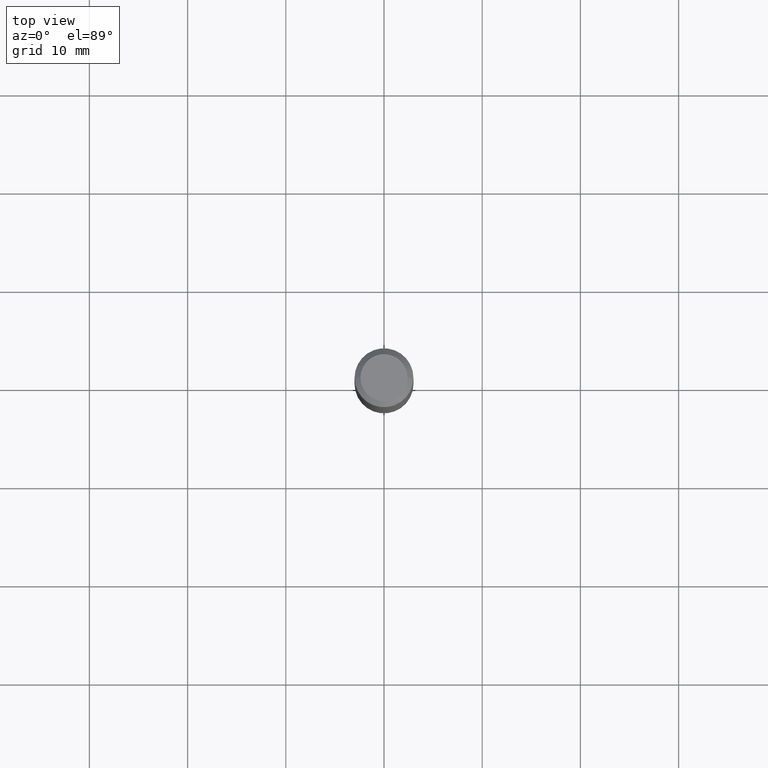
[diagram: clean part render]
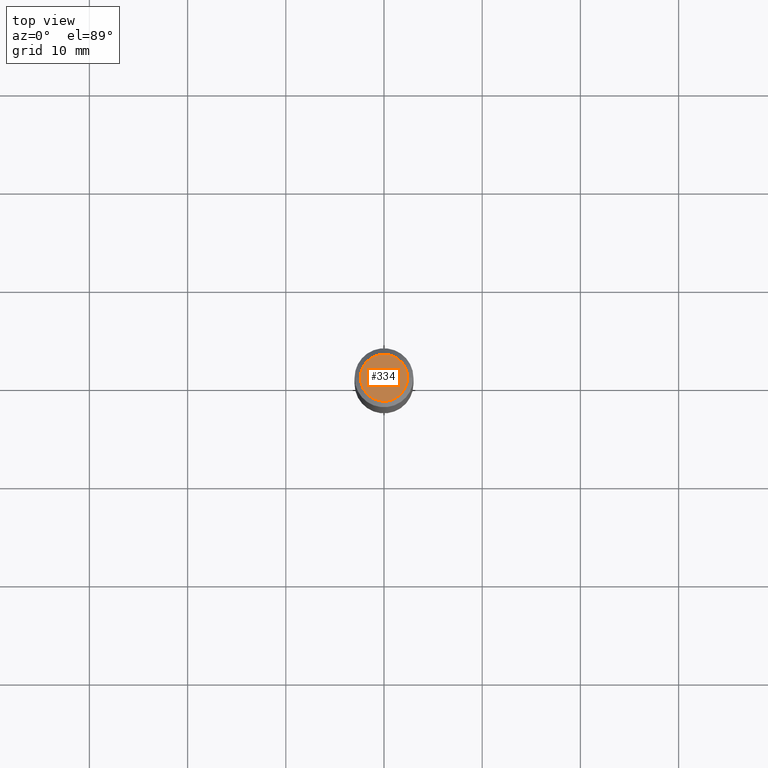
[diagram: same view with one face highlighted and labeled with its STEP entity id]
A machine part, top view. The second image highlights one B-rep face of the part: STEP entity #334.
In plain terms, the highlighted planar face has unit normal (0, -0, -1).
Its self-contained STEP definition (entity closure, byte-faithful):
#12 = PLANE ( 'NONE',  #167 ) ;
#50 = FACE_OUTER_BOUND ( 'NONE', #169, .T. ) ;
#55 = DIRECTION ( 'NONE',  ( 2.438088387897960049E-29, -3.491481338843145188E-15, -1.000000000000000000 ) ) ;
#75 = EDGE_CURVE ( 'NONE', #247, #235, #191, .T. ) ;
#80 = CARTESIAN_POINT ( 'NONE',  ( -0.09447999999999998066, 7.009847083995354710E-16, -1.928573779297727792E-17 ) ) ;
#107 = DIRECTION ( 'NONE',  ( -2.445468806185136597E-29, 3.491481338843145583E-15, 1.000000000000000000 ) ) ;
#151 = DIRECTION ( 'NONE',  ( -2.445468806185136597E-29, 3.491481338843145583E-15, 1.000000000000000000 ) ) ;
#167 = AXIS2_PLACEMENT_3D ( 'NONE', #420, #55, #210 ) ;
#169 = EDGE_LOOP ( 'NONE', ( #240, #217 ) ) ;
#185 = DIRECTION ( 'NONE',  ( 1.000000000000000000, -6.982962677686267499E-15, 4.875432709231658792E-29 ) ) ;
#190 = DIRECTION ( 'NONE',  ( 1.000000000000000000, -6.982962677686267499E-15, 4.875432709231658792E-29 ) ) ;
#191 = CIRCLE ( 'NONE', #449, 0.09447999999999998066 ) ;
#210 = DIRECTION ( 'NONE',  ( -1.000000000000000000, 6.982962677686265922E-15, -4.876176775795935793E-29 ) ) ;
#217 = ORIENTED_EDGE ( 'NONE', *, *, #440, .T. ) ;
#235 = VERTEX_POINT ( 'NONE', #421 ) ;
#240 = ORIENTED_EDGE ( 'NONE', *, *, #75, .T. ) ;
#247 = VERTEX_POINT ( 'NONE', #80 ) ;
#278 = CARTESIAN_POINT ( 'NONE',  ( 4.716267017698007905E-46, -6.733579360998555036E-32, -1.928573779297252010E-17 ) ) ;
#330 = CIRCLE ( 'NONE', #338, 0.09447999999999998066 ) ;
#334 = ADVANCED_FACE ( 'NONE', ( #50 ), #12, .F. ) ;
#338 = AXIS2_PLACEMENT_3D ( 'NONE', #278, #151, #185 ) ;
#375 = CARTESIAN_POINT ( 'NONE',  ( 4.716267017698007905E-46, -6.733579360998555036E-32, -1.928573779297252010E-17 ) ) ;
#420 = CARTESIAN_POINT ( 'NONE',  ( 2.358133508849003952E-46, -3.366789680499277518E-32, -9.642868896486260050E-18 ) ) ;
#421 = CARTESIAN_POINT ( 'NONE',  ( 0.09447999999999998066, -7.704367267948738690E-16, -1.928573779296752193E-17 ) ) ;
#440 = EDGE_CURVE ( 'NONE', #235, #247, #330, .T. ) ;
#449 = AXIS2_PLACEMENT_3D ( 'NONE', #375, #107, #190 ) ;